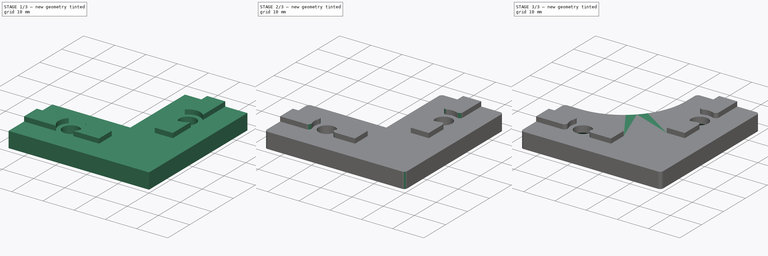
[diagram: build sequence overview — one tinted view per stage of 3, left to right]
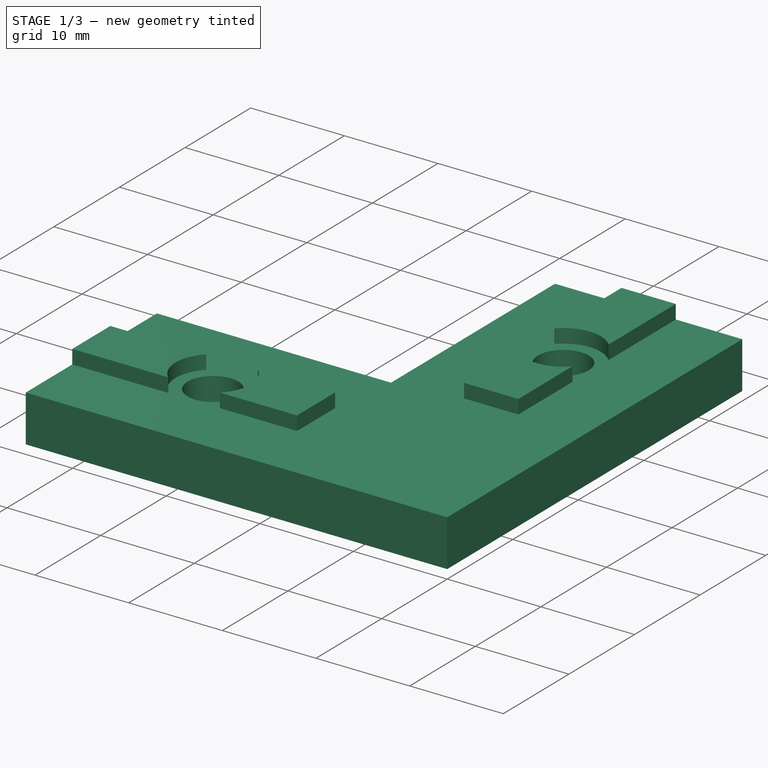
[diagram: stage 1 of 3 — iso view after this stage's code; geometry added in this stage tinted green]
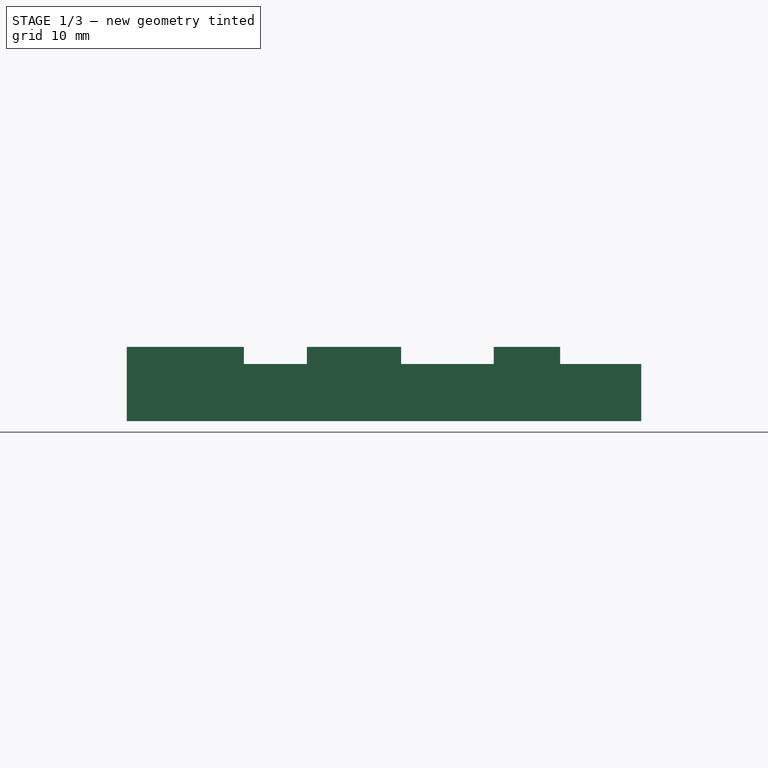
[diagram: stage 1 of 3 — front view after this stage's code; geometry added in this stage tinted green]
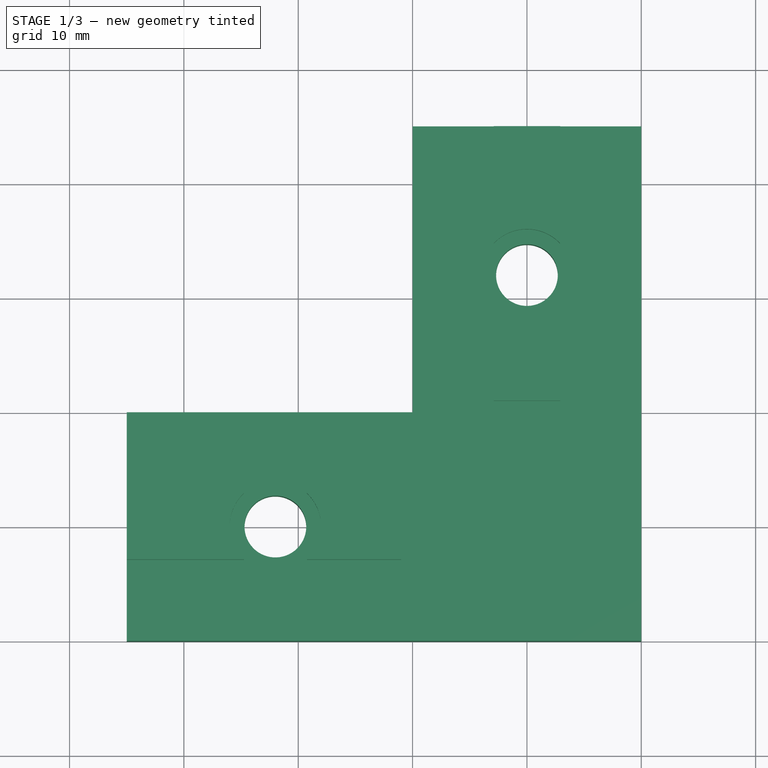
[diagram: stage 1 of 3 — top view after this stage's code; geometry added in this stage tinted green]
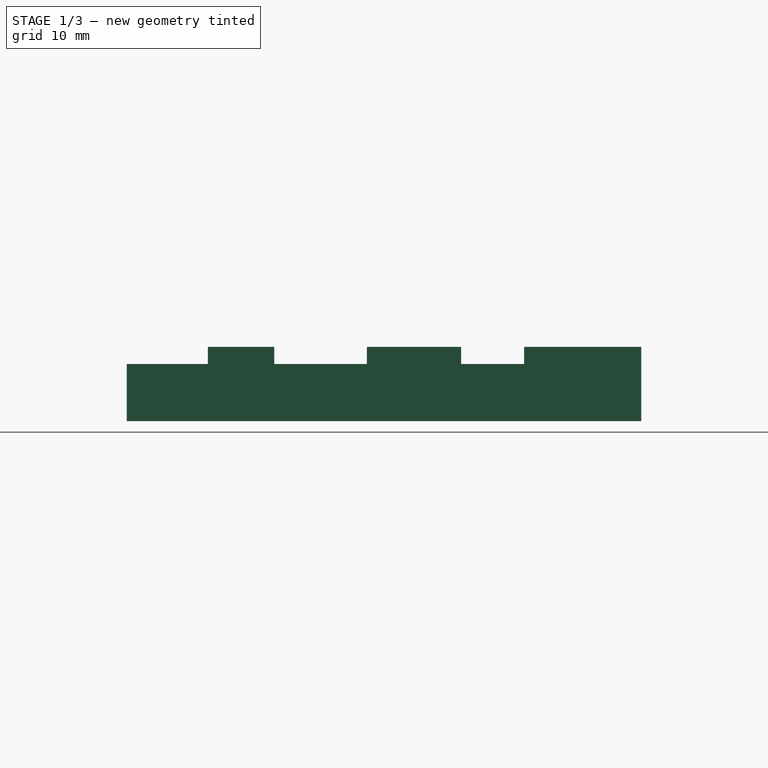
[diagram: stage 1 of 3 — right view after this stage's code; geometry added in this stage tinted green]
FCSTD DOCUMENT  (FreeCAD 0.15R4671 (Git))
Label: t_slot20_connector
License: All rights reserved
LicenseURL: http://en.wikipedia.org/wiki/All_rights_reserved
objects: Sketcher::SketchObject×2, PartDesign::Pad×2, PartDesign::Fillet×2, Part::FeaturePython×1
note: 9 computed .brp shape members not serialized (recipe doc carries the construction recipe); baked Part::Feature solids carry a one-line shape summary decoded from their .brp

FEATURE [Sketcher::SketchObject] Sketch
  sketch-geometry (12):
    g0: LineSegment StartX=0 StartY=0 StartZ=0 EndX=-45 EndY=0 EndZ=0
    g1: LineSegment StartX=-45 StartY=0 StartZ=0 EndX=-45 EndY=20 EndZ=0
    g2: LineSegment StartX=-45 StartY=20 StartZ=0 EndX=-20 EndY=20 EndZ=0
    g3: LineSegment StartX=-20 StartY=20 StartZ=0 EndX=-20 EndY=45 EndZ=0
    g4: LineSegment StartX=-20 StartY=45 StartZ=0 EndX=0 EndY=45 EndZ=0
    g5: LineSegment StartX=0 StartY=45 StartZ=0 EndX=0 EndY=0 EndZ=0
    g6: LineSegment [constr] StartX=-20 StartY=20 StartZ=0 EndX=-20 EndY=0 EndZ=0
    g7: LineSegment [constr] StartX=-20 StartY=20 StartZ=0 EndX=0 EndY=20 EndZ=0
    g8: Circle CenterX=-10 CenterY=32 CenterZ=0 NormalX=0 NormalY=0 NormalZ=1 Radius=2.7
    g9: Circle CenterX=-32 CenterY=10 CenterZ=0 NormalX=0 NormalY=0 NormalZ=1 Radius=2.7
    g10: LineSegment [constr] StartX=-10 StartY=45 StartZ=0 EndX=-10 EndY=20 EndZ=0
    g11: LineSegment [constr] StartX=-45 StartY=10 StartZ=0 EndX=-20 EndY=10 EndZ=0
  constraints (36):
    c: Coincident(g0,g-1)
    c: PointOnObject(g0,g-1)
    c: Coincident(g1,g0)
    c: Vertical(g1)
    c: Coincident(g1,g2)
    c: Horizontal(g2)
    c: Coincident(g2,g3)
    c: Vertical(g3)
    c: Coincident(g3,g4)
    c: Horizontal(g4)
    c: Coincident(g4,g5)
    c: Coincident(g5,g-1)
    c: Vertical(g5)
    c: DistanceX(g3,g4) = 20
    c: Equal(g1,g4)
    c: Equal(g2,g3)
    c: Coincident(g6,g2)
    c: PointOnObject(g6,g0)
    c: Vertical(g6)
    c: Coincident(g7,g2)
    c: PointOnObject(g7,g5)
    c: Equal(g9,g8)
    c: Vertical(g10)
    c: PointOnObject(g10,g4)
    c: PointOnObject(g10,g7)
    c: Horizontal(g7)
    c: Symmetric(g3,g4,g10)
    c: PointOnObject(g8,g10)
    c: PointOnObject(g11,g1)
    c: PointOnObject(g11,g6)
    c: Horizontal(g11)
    c: Symmetric(g1,g0,g11)
    c: PointOnObject(g9,g11)
    c: DistanceY(g8,g10) = -12
    c: DistanceX(g9,g11) = 12
    c: DistanceY(g2,g3) = 25
FEATURE [PartDesign::Pad] Pad
  Length = 5
  Length2 = 100
  Sketch = -> Sketch
  Type = 0
FEATURE [Sketcher::SketchObject] Sketch001
  ExternalGeometry = -> [Pad]
  Placement = pos=(0,0,5) rot=(0,0,1;0rad)
  Support = -> Pad [Face10]
  sketch-geometry (18):
    g0: LineSegment StartX=-21 StartY=12.9 StartZ=0 EndX=-21 EndY=7.1 EndZ=0
    g1: LineSegment StartX=-45 StartY=7.1 StartZ=0 EndX=-45 EndY=12.9 EndZ=0
    g2: LineSegment StartX=-12.9 StartY=45 StartZ=0 EndX=-7.1 EndY=45 EndZ=0
    g3: LineSegment StartX=-7.1 StartY=21 StartZ=0 EndX=-12.9 EndY=21 EndZ=0
    g4: LineSegment [constr] StartX=-10 StartY=45 StartZ=0 EndX=-10 EndY=10 EndZ=0
    g5: LineSegment [constr] StartX=-45 StartY=10 StartZ=0 EndX=-10 EndY=10 EndZ=0
    g6: LineSegment StartX=-45 StartY=12.9 StartZ=0 EndX=-34.755 EndY=12.9 EndZ=0
    g7: LineSegment StartX=-21 StartY=12.9 StartZ=0 EndX=-29.245 EndY=12.9 EndZ=0
    g8: LineSegment StartX=-45 StartY=7.1 StartZ=0 EndX=-34.755 EndY=7.1 EndZ=0
    g9: LineSegment StartX=-21 StartY=7.1 StartZ=0 EndX=-29.245 EndY=7.1 EndZ=0
    g10: LineSegment StartX=-12.9 StartY=45 StartZ=0 EndX=-12.9 EndY=34.755 EndZ=0
    g11: LineSegment StartX=-7.1 StartY=45 StartZ=0 EndX=-7.1 EndY=34.755 EndZ=0
    g12: LineSegment StartX=-12.9 StartY=21 StartZ=0 EndX=-12.9 EndY=29.245 EndZ=0
    g13: LineSegment StartX=-7.1 StartY=21 StartZ=0 EndX=-7.1 EndY=29.245 EndZ=0
    g14: ArcOfCircle CenterX=-10 CenterY=32 CenterZ=0 NormalX=0 NormalY=0 NormalZ=1 Radius=4 StartAngle=0.759762 EndAngle=2.38183
    g15: ArcOfCircle CenterX=-10 CenterY=32 CenterZ=0 NormalX=0 NormalY=0 NormalZ=1 Radius=4 StartAngle=3.90135 EndAngle=5.52342
    g16: ArcOfCircle CenterX=-32 CenterY=10 CenterZ=0 NormalX=0 NormalY=0 NormalZ=1 Radius=4 StartAngle=2.33056 EndAngle=3.95263
    g17: ArcOfCircle CenterX=-32 CenterY=10 CenterZ=0 NormalX=0 NormalY=0 NormalZ=1 Radius=4 StartAngle=5.47215 EndAngle=7.09422
  constraints (51):
    c: Vertical(g0)
    c: Horizontal(g3)
    c: Equal(g1,g0)
    c: Equal(g0,g3)
    c: Equal(g3,g2)
    c: PointOnObject(g4,g-3)
    c: Coincident(g5,g4)
    c: Symmetric(g-3,g-3,g4)
    c: PointOnObject(g5,g-4)
    c: Symmetric(g-4,g-4,g5)
    c: Symmetric(g1,g1,g5)
    c: Symmetric(g2,g2,g4)
    c: DistanceY(g1,g1) = -5.8
    c: PointOnObject(g1,g-4)
    c: PointOnObject(g2,g-3)
    c: DistanceY(g3,g2) = 24
    c: Coincident(g6,g1)
    c: Horizontal(g6)
    c: Coincident(g7,g0)
    c: Horizontal(g7)
    c: Coincident(g8,g1)
    c: Horizontal(g8)
    c: Coincident(g9,g0)
    c: Horizontal(g9)
    c: Symmetric(g0,g0,g5)
    c: Coincident(g10,g2)
    c: Vertical(g10)
    c: Coincident(g11,g2)
    c: Vertical(g11)
    c: Coincident(g12,g3)
    c: Coincident(g13,g3)
    c: Vertical(g13)
    c: Vertical(g12)
    c: Symmetric(g3,g3,g4)
    c: Coincident(g14,g11)
    c: Coincident(g15,g13)
    c: Equal(g14,g15)
    c: Coincident(g14,g10)
    c: Coincident(g15,g12)
    c: Coincident(g14,g15)
    c: Coincident(g16,g-5)
    c: Coincident(g16,g6)
    c: Coincident(g17,g7)
    c: Equal(g16,g17)
    c: Coincident(g16,g8)
    c: Coincident(g17,g9)
    c: Coincident(g16,g17)
    c: DistanceX(g1,g0) = 24
    c: Equal(g17,g15)
    c: Coincident(g-6,g14)
    c: Radius(g14) = 4
FEATURE [PartDesign::Pad] Pad001
  Length = 1.5
  Length2 = 100
  Sketch = -> Sketch001
  Type = 0
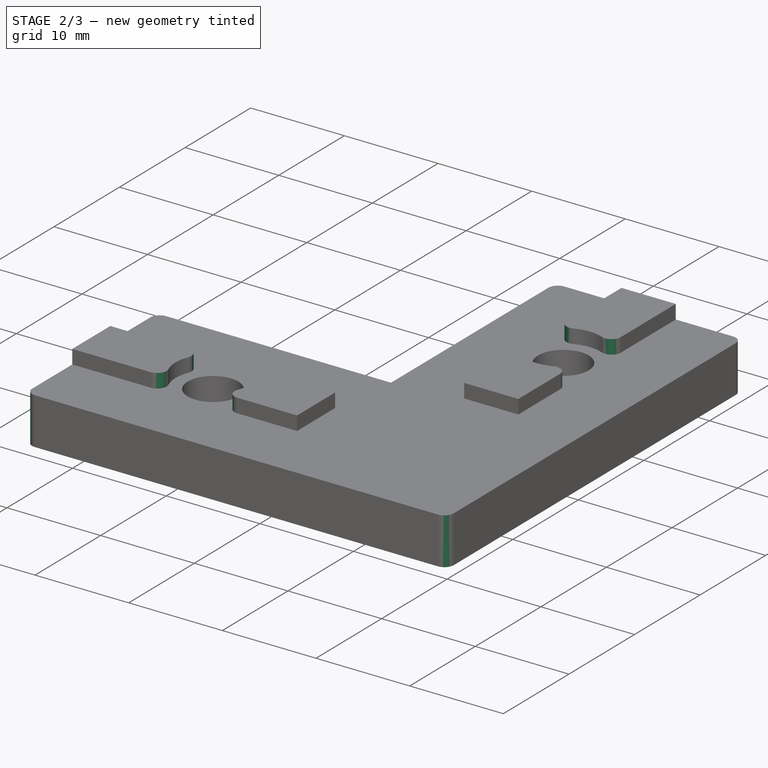
[diagram: stage 2 of 3 — iso view after this stage's code; geometry added in this stage tinted green]
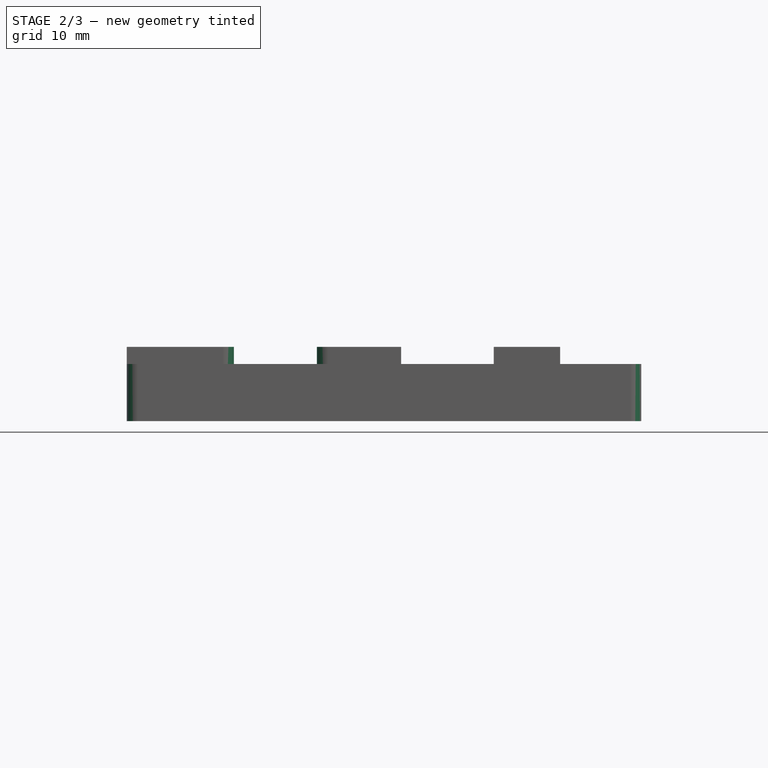
[diagram: stage 2 of 3 — front view after this stage's code; geometry added in this stage tinted green]
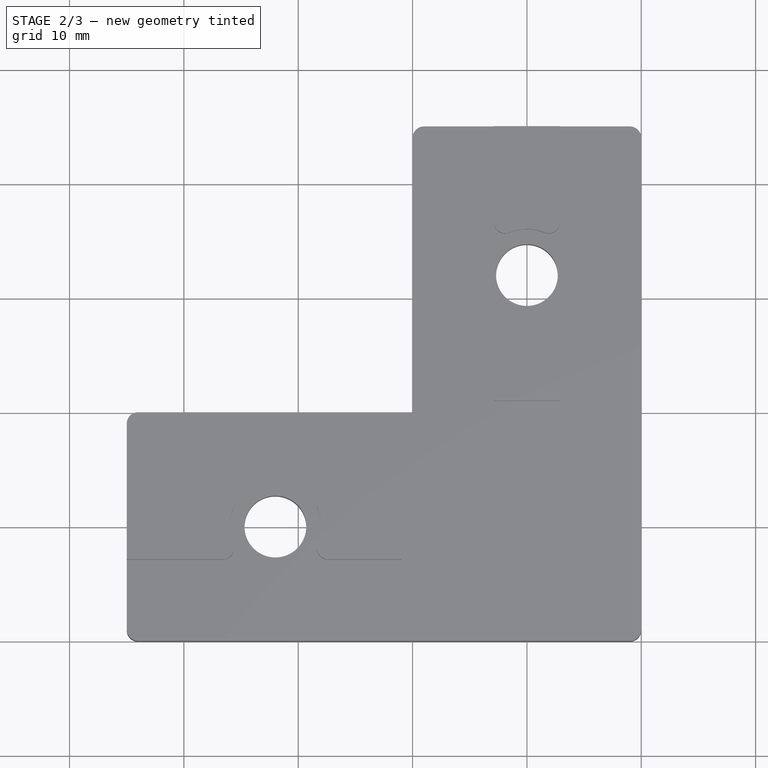
[diagram: stage 2 of 3 — top view after this stage's code; geometry added in this stage tinted green]
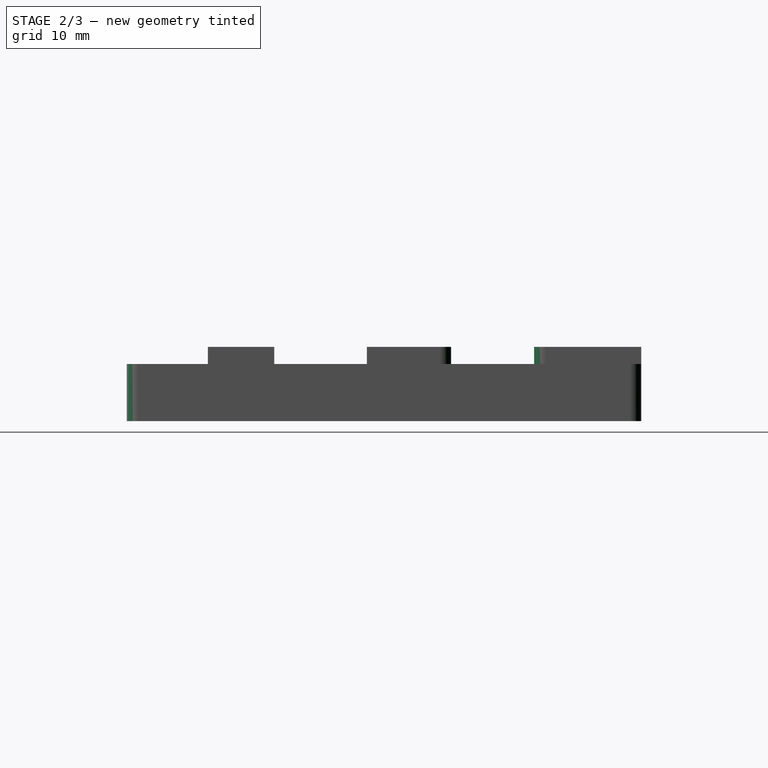
[diagram: stage 2 of 3 — right view after this stage's code; geometry added in this stage tinted green]
FEATURE [PartDesign::Fillet] Fillet
  Base = -> Pad001 [Edge53,Edge54,Edge72,Edge68,Edge64,Edge48,Edge47,Edge60,Edge10,Edge2,Edge38,Edge5,Edge1]
  Radius = 1
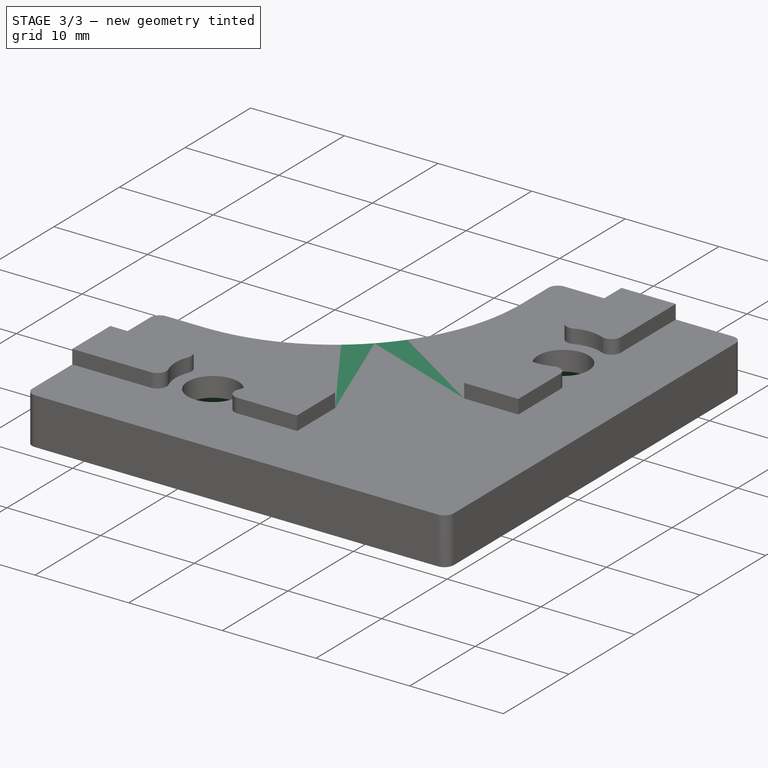
[diagram: stage 3 of 3 — iso view after this stage's code; geometry added in this stage tinted green]
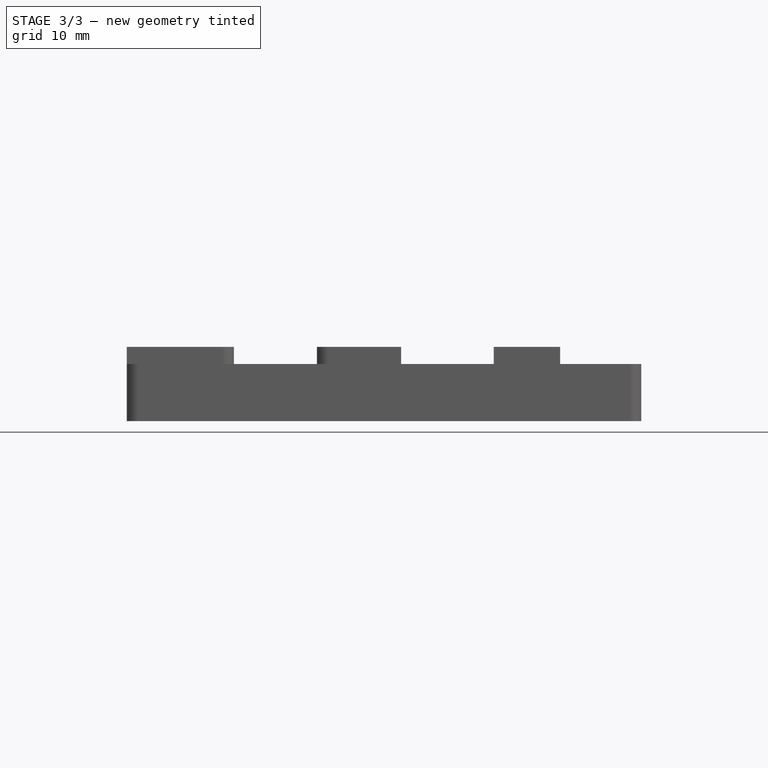
[diagram: stage 3 of 3 — front view after this stage's code; geometry added in this stage tinted green]
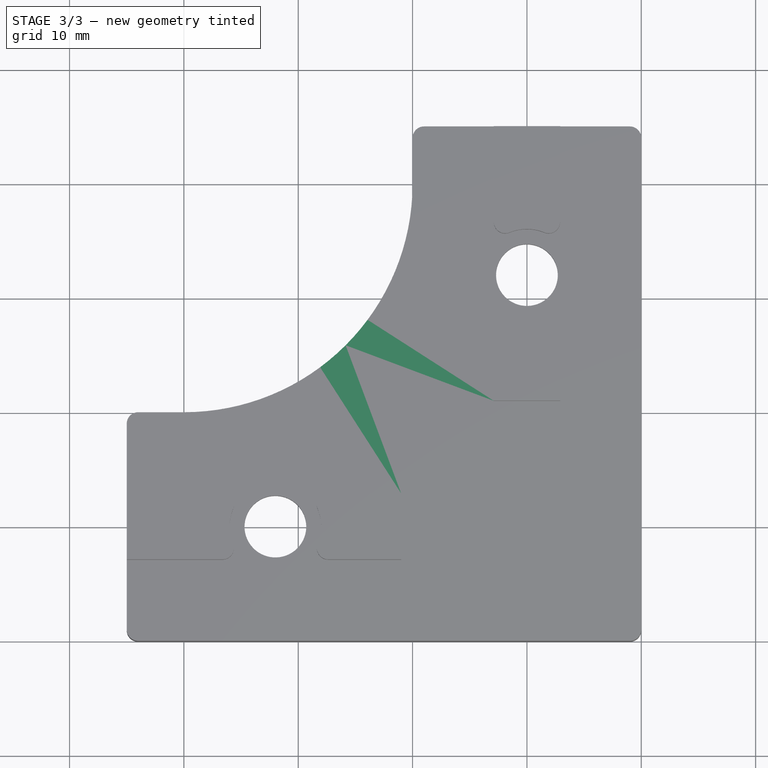
[diagram: stage 3 of 3 — top view after this stage's code; geometry added in this stage tinted green]
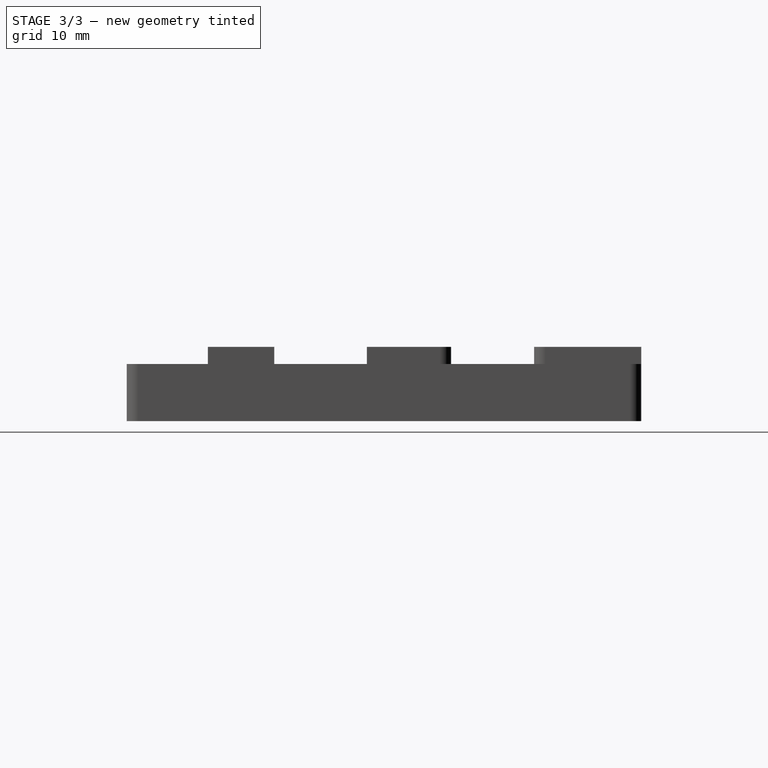
[diagram: stage 3 of 3 — right view after this stage's code; geometry added in this stage tinted green]
FEATURE [PartDesign::Fillet] Fillet001
  Base = -> Fillet [Edge62]
  Radius = 20
FEATURE [Part::FeaturePython] Countersunk  # WARN: FeaturePython — macro-defined, semantics opaque (R4)
  baseObject = -> Fillet001
  diameters = Edge13:M5:0:0:ISO10642 | Edge14:M5:0:0:ISO10642
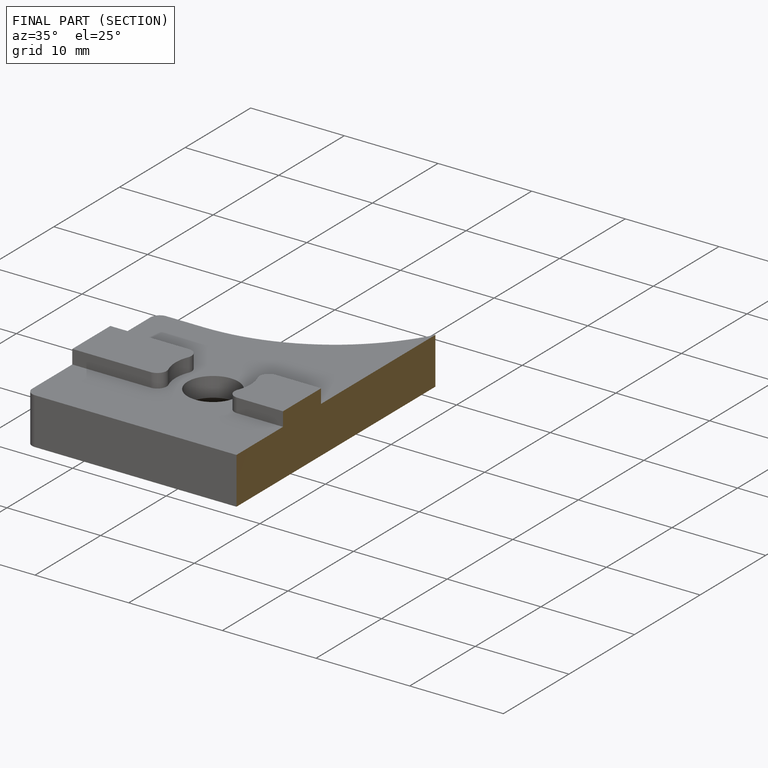
[diagram: finished part — half-section view (interior)]
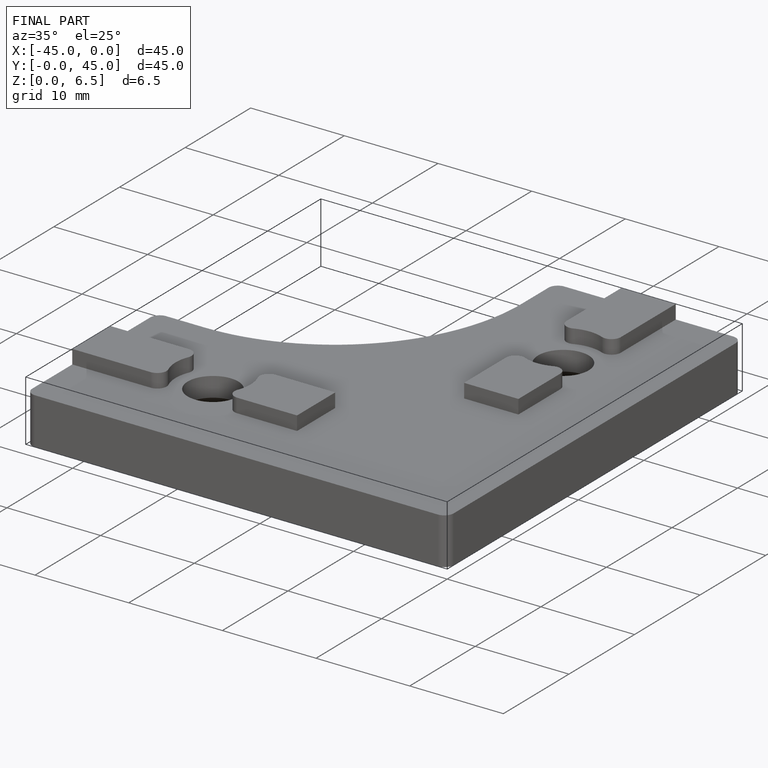
[diagram: finished part — iso view with bounding-box wireframe]
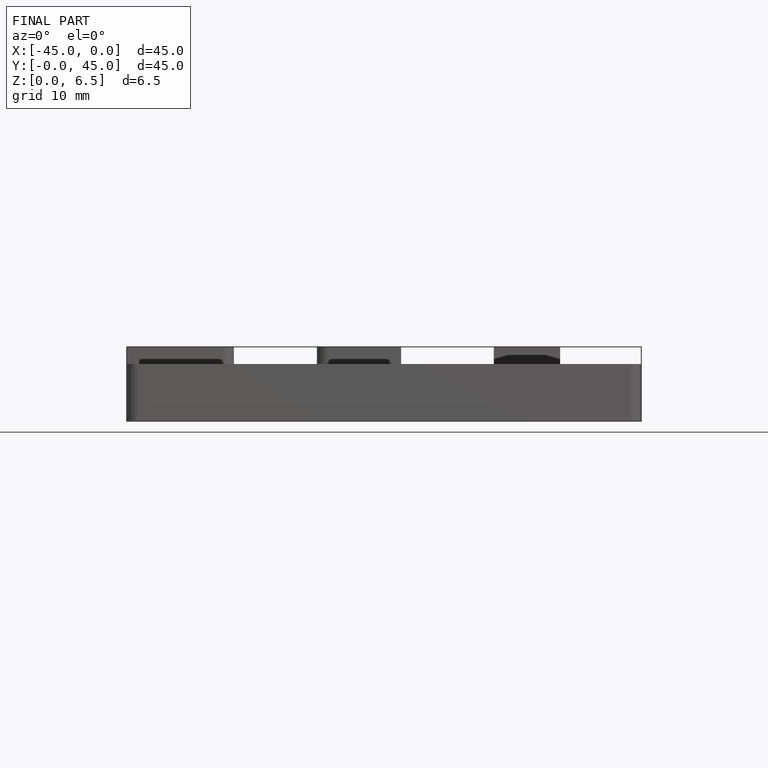
[diagram: finished part — front view with bounding-box wireframe]
